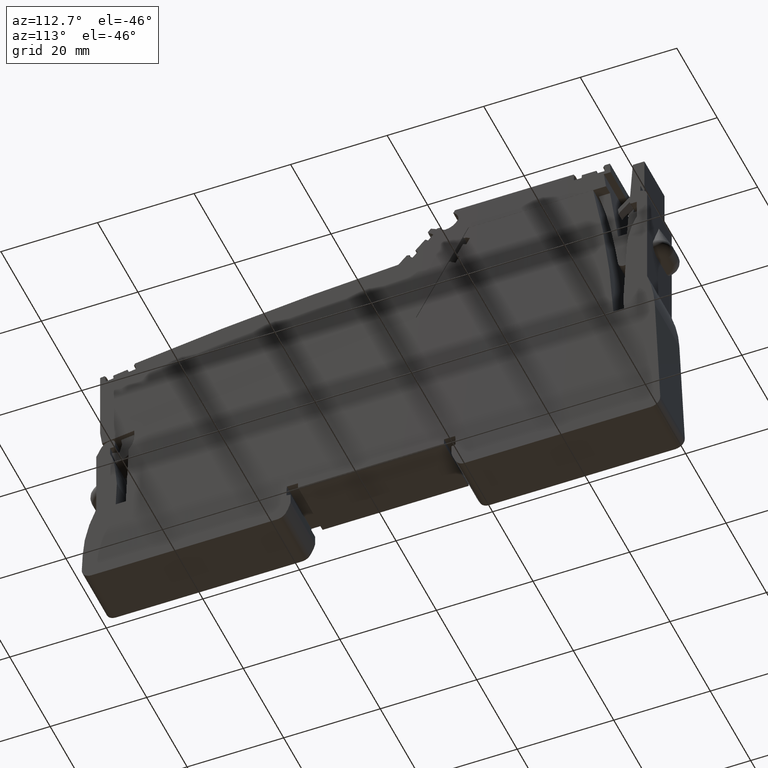
[diagram: clean part render]
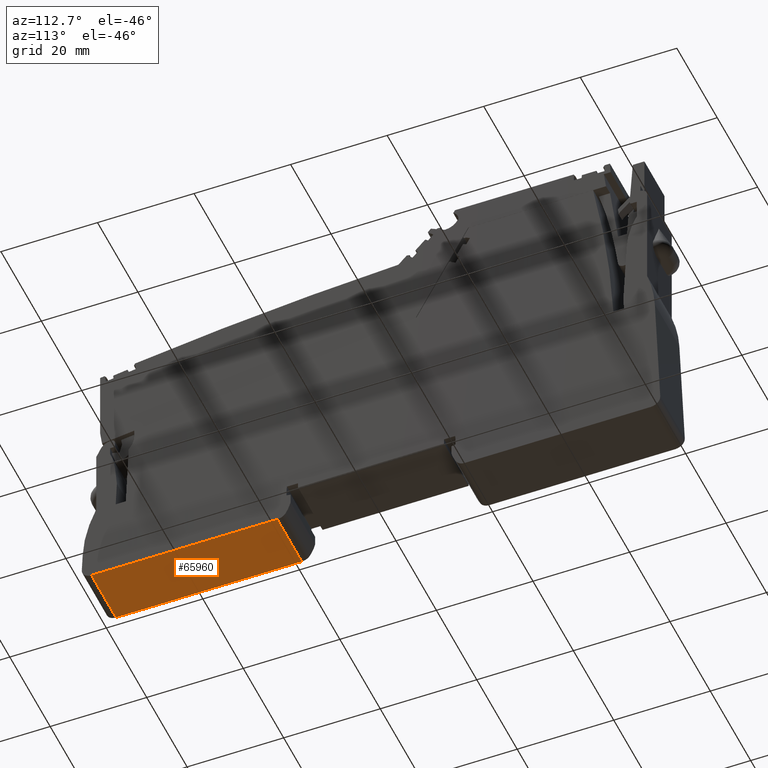
[diagram: same view with one face highlighted and labeled with its STEP entity id]
A machine part, auxiliary view. The second image highlights one B-rep face of the part: STEP entity #65960.
In plain terms, the highlighted planar face has unit normal (-0, 0, 1).
Its self-contained STEP definition (entity closure, byte-faithful):
#4020=CARTESIAN_POINT('',(217.09468547299,-62.9542780967929,36.45));
#4030=VERTEX_POINT('',#4020);
#4060=CARTESIAN_POINT('',(217.456642799386,-62.9542780967929,36.45));
#4070=DIRECTION('',(1.,0.,0.));
#4080=VECTOR('',#4070,1.);
#4090=LINE('',#4060,#4080);
#4100=CARTESIAN_POINT('',(178.617847465003,-62.9542780967929,36.45));
#4110=VERTEX_POINT('',#4100);
#4120=EDGE_CURVE('',#4110,#4030,#4090,.T.);
#9800=CARTESIAN_POINT('',(178.617847465003,-62.9542780967929,24.3));
#9810=VERTEX_POINT('',#9800);
#9840=CARTESIAN_POINT('',(217.456642799386,-62.9542780967929,24.3));
#9850=DIRECTION('',(-1.,0.,0.));
#9860=VECTOR('',#9850,1.);
#9870=LINE('',#9840,#9860);
#9880=CARTESIAN_POINT('',(217.09468547299,-62.9542780967929,24.3));
#9890=VERTEX_POINT('',#9880);
#9900=EDGE_CURVE('',#9890,#9810,#9870,.T.);
#65640=CARTESIAN_POINT('',(178.617847465003,-62.9542780967929,24.3));
#65650=DIRECTION('',(0.,1.19110369467609E-44,1.));
#65660=VECTOR('',#65650,1.);
#65670=LINE('',#65640,#65660);
#65680=EDGE_CURVE('',#9810,#4110,#65670,.T.);
#65800=CARTESIAN_POINT('',(178.617847465003,-62.9542780967929,24.3));
#65810=DIRECTION('',(0.,1.,-1.19110369467609E-44));
#65820=DIRECTION('',(-1.,0.,0.));
#65830=AXIS2_PLACEMENT_3D('',#65800,#65810,#65820);
#65840=PLANE('',#65830);
#65850=CARTESIAN_POINT('',(217.09468547299,-62.9542780967925,24.3));
#65860=DIRECTION('',(0.,1.19110369467609E-44,1.));
#65870=VECTOR('',#65860,1.);
#65880=LINE('',#65850,#65870);
#65890=EDGE_CURVE('',#9890,#4030,#65880,.T.);
#65900=ORIENTED_EDGE('',*,*,#65890,.T.);
#65910=ORIENTED_EDGE('',*,*,#9900,.F.);
#65920=ORIENTED_EDGE('',*,*,#65680,.F.);
#65930=ORIENTED_EDGE('',*,*,#4120,.F.);
#65940=EDGE_LOOP('',(#65930,#65920,#65910,#65900));
#65950=FACE_OUTER_BOUND('',#65940,.T.);
#65960=ADVANCED_FACE('',(#65950),#65840,.F.);